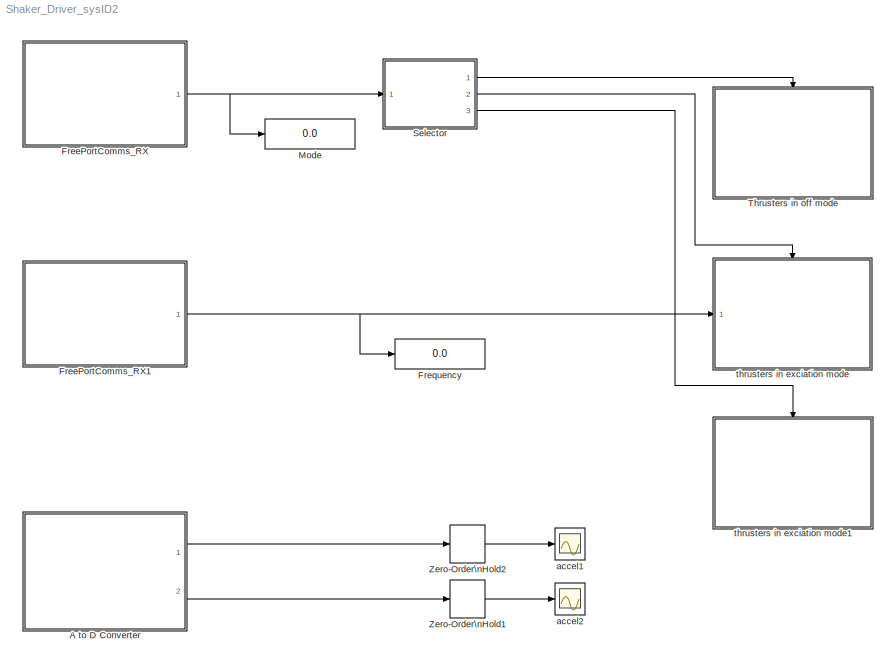
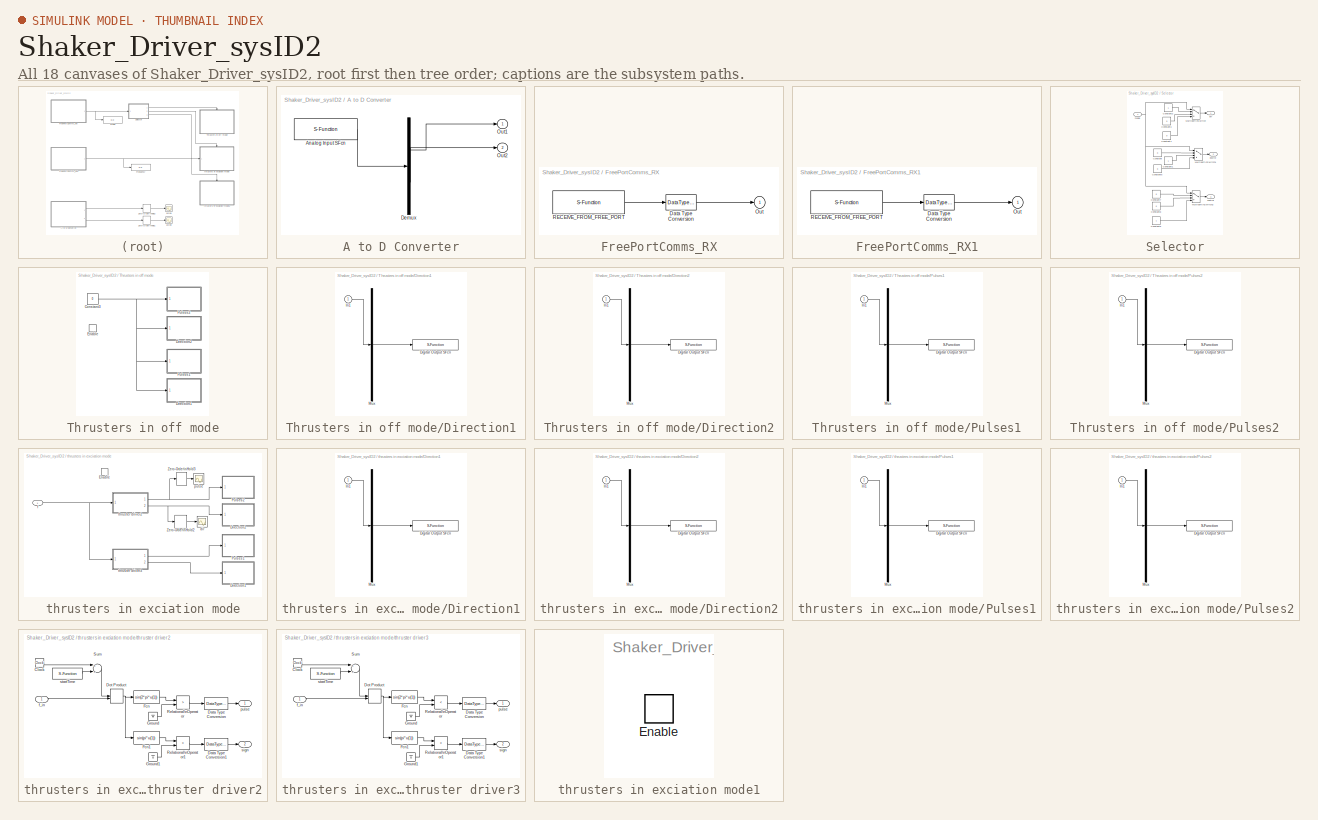
[diagram: thumbnail index - all 18 canvases of the model, root first then tree order]
MODEL Shaker_Driver_sysID2
KIND model
CONFIG PostLoadFcn = global accel1 accel2 pulse;	\nTs = 0.1
BLOCK [SubSystem] A to D Converter
  Ports = [0, 2]
  RequestExecContextInheritance = off
  SID = 84
  ShowPortLabels = none
  Tag = mcTarget_adc
BLOCK [S-Function] A to D Converter/Analog Input SFcn
  EnableBusSupport = off
  FunctionName = adc_sfcn_9S12
  Parameters = bank-1, firstChannel, numChannels, use10bits-1, normalize, sampletime
  Ports = [0, 1]
  SFcnIsStateOwnerBlock = off
  SFunctionDeploymentMode = off
  SID = 84:85
  Tag = mcTarget_adc
BLOCK [Demux] A to D Converter/Demux
  Outputs = 2
  Ports = [1, 2]
  SID = 84:86
BLOCK [Outport] A to D Converter/Out1
  IconDisplay = Port number
  SID = 84:87
BLOCK [Outport] A to D Converter/Out2
  IconDisplay = Port number
  Port = 2
  SID = 84:1
BLOCK [SubSystem] FreePortComms_RX
  Ports = [0, 1]
  RequestExecContextInheritance = off
  SID = 79
  ShowPortLabels = none
  Tag = mcTarget_freePortCommsRX
BLOCK [DataTypeConversion] FreePortComms_RX/Data Type Conversion
  OutDataTypeStr = double
  SID = 79:80
BLOCK [Outport] FreePortComms_RX/Out
  IconDisplay = Port number
  SID = 79:82
BLOCK [S-Function] FreePortComms_RX/RECEIVE_FROM_FREE_PORT
  EnableBusSupport = off
  FunctionName = freePortComms_rxd
  Parameters = sampletime, channel, buf_size, data_type, port, baudrate, format
  Ports = [0, 1]
  SFcnIsStateOwnerBlock = off
  SFunctionDeploymentMode = off
  SID = 79:81
  Tag = mcTarget_freePortCommsRX
BLOCK [SubSystem] FreePortComms_RX1
  Ports = [0, 1]
  RequestExecContextInheritance = off
  SID = 83
  ShowPortLabels = none
  Tag = mcTarget_freePortCommsRX
BLOCK [DataTypeConversion] FreePortComms_RX1/Data Type Conversion
  OutDataTypeStr = double
  SID = 83:80
BLOCK [Outport] FreePortComms_RX1/Out
  IconDisplay = Port number
  SID = 83:82
BLOCK [S-Function] FreePortComms_RX1/RECEIVE_FROM_FREE_PORT
  EnableBusSupport = off
  FunctionName = freePortComms_rxd
  Parameters = sampletime, channel, buf_size, data_type, port, baudrate, format
  Ports = [0, 1]
  SFcnIsStateOwnerBlock = off
  SFunctionDeploymentMode = off
  SID = 83:81
  Tag = mcTarget_freePortCommsRX
BLOCK [Display] Frequency
  Decimation = 1
  Ports = [1]
  SID = 4
BLOCK [Display] Mode
  Decimation = 1
  Ports = [1]
  SID = 5
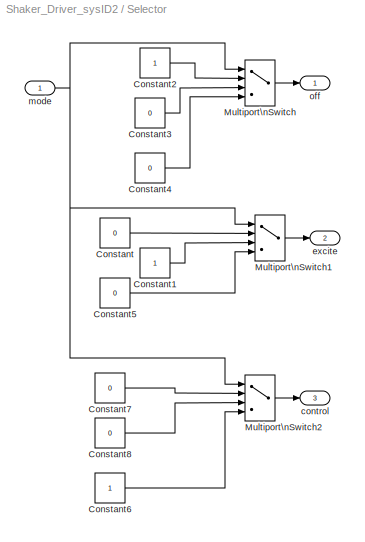
BLOCK [SubSystem] Selector
  Ports = [1, 3]
  RequestExecContextInheritance = off
  SID = 6
BLOCK [Constant] Selector/Constant
  SID = 8
  Value = 0
BLOCK [Constant] Selector/Constant1
  SID = 9
BLOCK [Constant] Selector/Constant2
  SID = 10
BLOCK [Constant] Selector/Constant3
  SID = 11
  Value = 0
BLOCK [Constant] Selector/Constant4
  SID = 12
  Value = 0
BLOCK [Constant] Selector/Constant5
  SID = 13
  Value = 0
BLOCK [Constant] Selector/Constant6
  SID = 14
BLOCK [Constant] Selector/Constant7
  SID = 15
  Value = 0
BLOCK [Constant] Selector/Constant8
  SID = 16
  Value = 0
BLOCK [MultiPortSwitch] Selector/Multiport\nSwitch
  InputSameDT = off
  Ports = [4, 1]
  SID = 17
BLOCK [MultiPortSwitch] Selector/Multiport\nSwitch1
  InputSameDT = off
  Ports = [4, 1]
  SID = 18
BLOCK [MultiPortSwitch] Selector/Multiport\nSwitch2
  InputSameDT = off
  Ports = [4, 1]
  SID = 19
BLOCK [Outport] Selector/control
  IconDisplay = Port number
  Port = 3
  SID = 22
BLOCK [Outport] Selector/excite
  IconDisplay = Port number
  Port = 2
  SID = 21
BLOCK [Inport] Selector/mode
  IconDisplay = Port number
  SID = 7
BLOCK [Outport] Selector/off
  IconDisplay = Port number
  SID = 20
BLOCK [SubSystem] Thrusters in off mode
  Ports = [0, 0, 1]
  RequestExecContextInheritance = off
  SID = 23
BLOCK [Constant] Thrusters in off mode/Constant3
  SID = 25
  Value = 0
BLOCK [SubSystem] Thrusters in off mode/Direction1
  Ports = [1]
  RequestExecContextInheritance = off
  SID = 101
  ShowPortLabels = none
  Tag = mcTarget_digOut
BLOCK [S-Function] Thrusters in off mode/Direction1/Digital Output SFcn
  EnableBusSupport = off
  FunctionName = digOut_sfcn_9S12
  Parameters = sampletime, port, pins, Von, Voff
  Ports = [1]
  SFcnIsStateOwnerBlock = off
  SFunctionDeploymentMode = off
  SID = 103
  Tag = mcTarget_digOut
BLOCK [Inport] Thrusters in off mode/Direction1/In1
  IconDisplay = Port number
  SID = 102
BLOCK [Mux] Thrusters in off mode/Direction1/Mux
  DisplayOption = bar
  Inputs = 1
  Ports = [1, 1]
  SID = 104
BLOCK [SubSystem] Thrusters in off mode/Direction2
  Ports = [1]
  RequestExecContextInheritance = off
  SID = 97
  ShowPortLabels = none
  Tag = mcTarget_digOut
BLOCK [S-Function] Thrusters in off mode/Direction2/Digital Output SFcn
  EnableBusSupport = off
  FunctionName = digOut_sfcn_9S12
  Parameters = sampletime, port, pins, Von, Voff
  Ports = [1]
  SFcnIsStateOwnerBlock = off
  SFunctionDeploymentMode = off
  SID = 99
  Tag = mcTarget_digOut
BLOCK [Inport] Thrusters in off mode/Direction2/In1
  IconDisplay = Port number
  SID = 98
BLOCK [Mux] Thrusters in off mode/Direction2/Mux
  DisplayOption = bar
  Inputs = 1
  Ports = [1, 1]
  SID = 100
BLOCK [EnablePort] Thrusters in off mode/Enable
  Ports = []
  SID = 24
BLOCK [SubSystem] Thrusters in off mode/Pulses1
  Ports = [1]
  RequestExecContextInheritance = off
  SID = 93
  ShowPortLabels = none
  Tag = mcTarget_digOut
BLOCK [S-Function] Thrusters in off mode/Pulses1/Digital Output SFcn
  EnableBusSupport = off
  FunctionName = digOut_sfcn_9S12
  Parameters = sampletime, port, pins, Von, Voff
  Ports = [1]
  SFcnIsStateOwnerBlock = off
  SFunctionDeploymentMode = off
  SID = 95
  Tag = mcTarget_digOut
BLOCK [Inport] Thrusters in off mode/Pulses1/In1
  IconDisplay = Port number
  SID = 94
BLOCK [Mux] Thrusters in off mode/Pulses1/Mux
  DisplayOption = bar
  Inputs = 1
  Ports = [1, 1]
  SID = 96
BLOCK [SubSystem] Thrusters in off mode/Pulses2
  Ports = [1]
  RequestExecContextInheritance = off
  SID = 88
  ShowPortLabels = none
  Tag = mcTarget_digOut
BLOCK [S-Function] Thrusters in off mode/Pulses2/Digital Output SFcn
  EnableBusSupport = off
  FunctionName = digOut_sfcn_9S12
  Parameters = sampletime, port, pins, Von, Voff
  Ports = [1]
  SFcnIsStateOwnerBlock = off
  SFunctionDeploymentMode = off
  SID = 91
  Tag = mcTarget_digOut
BLOCK [Inport] Thrusters in off mode/Pulses2/In1
  IconDisplay = Port number
  SID = 89
BLOCK [Mux] Thrusters in off mode/Pulses2/Mux
  DisplayOption = bar
  Inputs = 1
  Ports = [1, 1]
  SID = 92
BLOCK [ZeroOrderHold] Zero-Order\nHold1
  SID = 30
  SampleTime = Ts
BLOCK [ZeroOrderHold] Zero-Order\nHold2
  SID = 31
  SampleTime = Ts
BLOCK [Scope] accel1
  Floating = off
  NumInputPorts = 1
  Ports = [1]
  SID = 32
  ScopeSpecificationString = C++SS(StrPVP('Location','[49, 484, 390, 684]'),StrPVP('Open','off'),MxPVP('AxesTitles',54,'struct(''axes1'',''%<SignalLabel>'')'),StrPVP('TimeRange','4'),StrPVP('YMin','1.7'),StrPVP('YMax','3.4'),StrPVP('SaveToWorkspace','on'),StrPVP('SaveName','accel1'),StrPVP('DataFormat','StructureWithTime'),StrPVP('LimitDataPoints','on'),StrPVP('Decimation','1'),StrPVP('BlockParamSampleInput','off'))
BLOCK [Scope] accel2
  Floating = off
  NumInputPorts = 1
  Ports = [1]
  SID = 33
  ScopeSpecificationString = C++SS(StrPVP('Location','[419, 487, 747, 695]'),StrPVP('Open','off'),MxPVP('AxesTitles',54,'struct(''axes1'',''%<SignalLabel>'')'),StrPVP('TimeRange','4'),StrPVP('YMin','-1'),StrPVP('YMax','6'),StrPVP('SaveToWorkspace','on'),StrPVP('SaveName','accel2'),StrPVP('DataFormat','StructureWithTime'),StrPVP('LimitDataPoints','on'),StrPVP('Decimation','1'),StrPVP('BlockParamSampleInput','off'))
BLOCK [SubSystem] thrusters in exciation mode
  Ports = [1, 0, 1]
  RequestExecContextInheritance = off
  SID = 34
BLOCK [SubSystem] thrusters in exciation mode/Direction1
  Ports = [1]
  RequestExecContextInheritance = off
  SID = 105
  ShowPortLabels = none
  Tag = mcTarget_digOut
BLOCK [S-Function] thrusters in exciation mode/Direction1/Digital Output SFcn
  EnableBusSupport = off
  FunctionName = digOut_sfcn_9S12
  Parameters = sampletime, port, pins, Von, Voff
  Ports = [1]
  SFcnIsStateOwnerBlock = off
  SFunctionDeploymentMode = off
  SID = 107
  Tag = mcTarget_digOut
BLOCK [Inport] thrusters in exciation mode/Direction1/In1
  IconDisplay = Port number
  SID = 106
BLOCK [Mux] thrusters in exciation mode/Direction1/Mux
  DisplayOption = bar
  Inputs = 1
  Ports = [1, 1]
  SID = 108
BLOCK [SubSystem] thrusters in exciation mode/Direction2
  Ports = [1]
  RequestExecContextInheritance = off
  SID = 109
  ShowPortLabels = none
  Tag = mcTarget_digOut
BLOCK [S-Function] thrusters in exciation mode/Direction2/Digital Output SFcn
  EnableBusSupport = off
  FunctionName = digOut_sfcn_9S12
  Parameters = sampletime, port, pins, Von, Voff
  Ports = [1]
  SFcnIsStateOwnerBlock = off
  SFunctionDeploymentMode = off
  SID = 111
  Tag = mcTarget_digOut
BLOCK [Inport] thrusters in exciation mode/Direction2/In1
  IconDisplay = Port number
  SID = 110
BLOCK [Mux] thrusters in exciation mode/Direction2/Mux
  DisplayOption = bar
  Inputs = 1
  Ports = [1, 1]
  SID = 112
BLOCK [EnablePort] thrusters in exciation mode/Enable
  Ports = []
  SID = 36
BLOCK [SubSystem] thrusters in exciation mode/Pulses1
  Ports = [1]
  RequestExecContextInheritance = off
  SID = 113
  ShowPortLabels = none
  Tag = mcTarget_digOut
BLOCK [S-Function] thrusters in exciation mode/Pulses1/Digital Output SFcn
  EnableBusSupport = off
  FunctionName = digOut_sfcn_9S12
  Parameters = sampletime, port, pins, Von, Voff
  Ports = [1]
  SFcnIsStateOwnerBlock = off
  SFunctionDeploymentMode = off
  SID = 115
  Tag = mcTarget_digOut
BLOCK [Inport] thrusters in exciation mode/Pulses1/In1
  IconDisplay = Port number
  SID = 114
BLOCK [Mux] thrusters in exciation mode/Pulses1/Mux
  DisplayOption = bar
  Inputs = 1
  Ports = [1, 1]
  SID = 116
BLOCK [SubSystem] thrusters in exciation mode/Pulses2
  Ports = [1]
  RequestExecContextInheritance = off
  SID = 117
  ShowPortLabels = none
  Tag = mcTarget_digOut
BLOCK [S-Function] thrusters in exciation mode/Pulses2/Digital Output SFcn
  EnableBusSupport = off
  FunctionName = digOut_sfcn_9S12
  Parameters = sampletime, port, pins, Von, Voff
  Ports = [1]
  SFcnIsStateOwnerBlock = off
  SFunctionDeploymentMode = off
  SID = 119
  Tag = mcTarget_digOut
BLOCK [Inport] thrusters in exciation mode/Pulses2/In1
  IconDisplay = Port number
  SID = 118
BLOCK [Mux] thrusters in exciation mode/Pulses2/Mux
  DisplayOption = bar
  Inputs = 1
  Ports = [1, 1]
  SID = 120
BLOCK [ZeroOrderHold] thrusters in exciation mode/Zero-Order\nHold2
  SID = 41
  SampleTime = Ts
BLOCK [ZeroOrderHold] thrusters in exciation mode/Zero-Order\nHold3
  SID = 42
  SampleTime = Ts
BLOCK [Scope] thrusters in exciation mode/dir
  Floating = off
  NumInputPorts = 1
  Ports = [1]
  SID = 43
  ScopeSpecificationString = C++SS(StrPVP('Location','[197, 330, 521, 569]'),StrPVP('Open','off'),MxPVP('AxesTitles',54,'struct(''axes1'',''%<SignalLabel>'')'),StrPVP('TimeRange','4'),StrPVP('YMin','-1'),StrPVP('YMax','2'),StrPVP('SaveToWorkspace','on'),StrPVP('SaveName','direction'),StrPVP('DataFormat','StructureWithTime'),StrPVP('LimitDataPoints','on'),StrPVP('Decimation','1'),StrPVP('BlockParamSampleInput','off'))
BLOCK [Inport] thrusters in exciation mode/f
  IconDisplay = Port number
  SID = 35
BLOCK [Scope] thrusters in exciation mode/pulse
  Floating = off
  NumInputPorts = 1
  Ports = [1]
  SID = 44
  ScopeSpecificationString = C++SS(StrPVP('Location','[188, 365, 512, 604]'),StrPVP('Open','off'),MxPVP('AxesTitles',54,'struct(''axes1'',''%<SignalLabel>'')'),StrPVP('TimeRange','4'),StrPVP('YMin','-1'),StrPVP('YMax','2'),StrPVP('SaveToWorkspace','on'),StrPVP('SaveName','pulse'),StrPVP('DataFormat','StructureWithTime'),StrPVP('LimitDataPoints','on'),StrPVP('Decimation','1'),StrPVP('BlockParamSampleInput','off'))
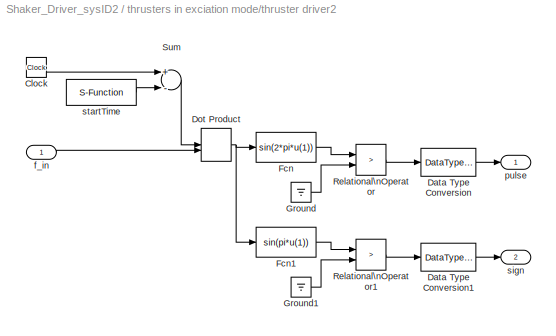
BLOCK [SubSystem] thrusters in exciation mode/thruster driver2
  Ports = [1, 2]
  RequestExecContextInheritance = off
  SID = 45
BLOCK [Clock] thrusters in exciation mode/thruster driver2/Clock
  SID = 47
BLOCK [DataTypeConversion] thrusters in exciation mode/thruster driver2/Data Type Conversion
  OutDataTypeStr = double
  SID = 48
BLOCK [DataTypeConversion] thrusters in exciation mode/thruster driver2/Data Type Conversion1
  OutDataTypeStr = double
  SID = 49
BLOCK [DotProduct] thrusters in exciation mode/thruster driver2/Dot Product
  OutDataTypeStr = Inherit: Inherit via internal rule
  SID = 50
BLOCK [Fcn] thrusters in exciation mode/thruster driver2/Fcn
  Expr = sin(2*pi*u(1))
  SID = 51
BLOCK [Fcn] thrusters in exciation mode/thruster driver2/Fcn1
  Expr = sin(pi*u(1))
  SID = 52
BLOCK [Ground] thrusters in exciation mode/thruster driver2/Ground
  SID = 53
BLOCK [Ground] thrusters in exciation mode/thruster driver2/Ground1
  SID = 54
BLOCK [RelationalOperator] thrusters in exciation mode/thruster driver2/Relational\nOperator
  Operator = >
  Ports = [2, 1]
  SID = 55
BLOCK [RelationalOperator] thrusters in exciation mode/thruster driver2/Relational\nOperator1
  Operator = >
  Ports = [2, 1]
  SID = 56
BLOCK [Sum] thrusters in exciation mode/thruster driver2/Sum
  Inputs = +-
  Ports = [2, 1]
  SID = 57
BLOCK [Inport] thrusters in exciation mode/thruster driver2/f_in
  IconDisplay = Port number
  SID = 46
BLOCK [Outport] thrusters in exciation mode/thruster driver2/pulse
  IconDisplay = Port number
  SID = 59
BLOCK [Outport] thrusters in exciation mode/thruster driver2/sign
  IconDisplay = Port number
  Port = 2
  SID = 60
BLOCK [S-Function] thrusters in exciation mode/thruster driver2/startTime
  EnableBusSupport = off
  FunctionName = sfun_tstart
  Ports = [0, 1]
  SFcnIsStateOwnerBlock = off
  SFunctionDeploymentMode = off
  SID = 58
BLOCK [SubSystem] thrusters in exciation mode/thruster driver3
  Ports = [1, 2]
  RequestExecContextInheritance = off
  SID = 61
BLOCK [Clock] thrusters in exciation mode/thruster driver3/Clock
  SID = 63
BLOCK [DataTypeConversion] thrusters in exciation mode/thruster driver3/Data Type Conversion
  OutDataTypeStr = double
  SID = 64
BLOCK [DataTypeConversion] thrusters in exciation mode/thruster driver3/Data Type Conversion1
  OutDataTypeStr = double
  SID = 65
BLOCK [DotProduct] thrusters in exciation mode/thruster driver3/Dot Product
  OutDataTypeStr = Inherit: Inherit via internal rule
  SID = 66
BLOCK [Fcn] thrusters in exciation mode/thruster driver3/Fcn
  Expr = sin(2*pi*u(1))
  SID = 67
BLOCK [Fcn] thrusters in exciation mode/thruster driver3/Fcn1
  Expr = sin(pi*u(1))
  SID = 68
BLOCK [Ground] thrusters in exciation mode/thruster driver3/Ground
  SID = 69
BLOCK [Ground] thrusters in exciation mode/thruster driver3/Ground1
  SID = 70
BLOCK [RelationalOperator] thrusters in exciation mode/thruster driver3/Relational\nOperator
  Operator = <
  Ports = [2, 1]
  SID = 71
BLOCK [RelationalOperator] thrusters in exciation mode/thruster driver3/Relational\nOperator1
  Operator = <
  Ports = [2, 1]
  SID = 72
BLOCK [Sum] thrusters in exciation mode/thruster driver3/Sum
  Inputs = +-
  Ports = [2, 1]
  SID = 73
BLOCK [Inport] thrusters in exciation mode/thruster driver3/f_in
  IconDisplay = Port number
  SID = 62
BLOCK [Outport] thrusters in exciation mode/thruster driver3/pulse
  IconDisplay = Port number
  SID = 75
BLOCK [Outport] thrusters in exciation mode/thruster driver3/sign
  IconDisplay = Port number
  Port = 2
  SID = 76
BLOCK [S-Function] thrusters in exciation mode/thruster driver3/startTime
  EnableBusSupport = off
  FunctionName = sfun_tstart
  Ports = [0, 1]
  SFcnIsStateOwnerBlock = off
  SFunctionDeploymentMode = off
  SID = 74
BLOCK [SubSystem] thrusters in exciation mode1
  Ports = [0, 0, 1]
  RequestExecContextInheritance = off
  SID = 77
BLOCK [EnablePort] thrusters in exciation mode1/Enable
  Ports = []
  SID = 78
LINE A to D Converter/Analog Input SFcn:1 -> A to D Converter/Demux:1
LINE A to D Converter/Demux:1 -> A to D Converter/Out1:1
LINE A to D Converter/Demux:2 -> A to D Converter/Out2:1
LINE A to D Converter:1 -> Zero-Order\nHold2:1
LINE A to D Converter:2 -> Zero-Order\nHold1:1
LINE FreePortComms_RX/Data Type Conversion:1 -> FreePortComms_RX/Out:1
LINE FreePortComms_RX/RECEIVE_FROM_FREE_PORT:1 -> FreePortComms_RX/Data Type Conversion:1
LINE FreePortComms_RX1/Data Type Conversion:1 -> FreePortComms_RX1/Out:1
LINE FreePortComms_RX1/RECEIVE_FROM_FREE_PORT:1 -> FreePortComms_RX1/Data Type Conversion:1
NET FreePortComms_RX1:1 -> Frequency:1, thrusters in exciation mode:1
NET FreePortComms_RX:1 -> Mode:1, Selector:1
LINE Selector/Constant1:1 -> Selector/Multiport\nSwitch1:3
LINE Selector/Constant2:1 -> Selector/Multiport\nSwitch:2
LINE Selector/Constant3:1 -> Selector/Multiport\nSwitch:3
LINE Selector/Constant4:1 -> Selector/Multiport\nSwitch:4
LINE Selector/Constant5:1 -> Selector/Multiport\nSwitch1:4
LINE Selector/Constant6:1 -> Selector/Multiport\nSwitch2:4
LINE Selector/Constant7:1 -> Selector/Multiport\nSwitch2:2
LINE Selector/Constant8:1 -> Selector/Multiport\nSwitch2:3
LINE Selector/Constant:1 -> Selector/Multiport\nSwitch1:2
LINE Selector/Multiport\nSwitch1:1 -> Selector/excite:1
LINE Selector/Multiport\nSwitch2:1 -> Selector/control:1
LINE Selector/Multiport\nSwitch:1 -> Selector/off:1
NET Selector/mode:1 -> Selector/Multiport\nSwitch1:1, Selector/Multiport\nSwitch2:1, Selector/Multiport\nSwitch:1
LINE Selector:1 -> Thrusters in off mode:enable
LINE Selector:2 -> thrusters in exciation mode:enable
LINE Selector:3 -> thrusters in exciation mode1:enable
NET Thrusters in off mode/Constant3:1 -> Thrusters in off mode/Direction1:1, Thrusters in off mode/Direction2:1, Thrusters in off mode/Pulses1:1, Thrusters in off mode/Pulses2:1
LINE Thrusters in off mode/Direction1/In1:1 -> Thrusters in off mode/Direction1/Mux:1
LINE Thrusters in off mode/Direction1/Mux:1 -> Thrusters in off mode/Direction1/Digital Output SFcn:1
LINE Thrusters in off mode/Direction2/In1:1 -> Thrusters in off mode/Direction2/Mux:1
LINE Thrusters in off mode/Direction2/Mux:1 -> Thrusters in off mode/Direction2/Digital Output SFcn:1
LINE Thrusters in off mode/Pulses1/In1:1 -> Thrusters in off mode/Pulses1/Mux:1
LINE Thrusters in off mode/Pulses1/Mux:1 -> Thrusters in off mode/Pulses1/Digital Output SFcn:1
LINE Thrusters in off mode/Pulses2/In1:1 -> Thrusters in off mode/Pulses2/Mux:1
LINE Thrusters in off mode/Pulses2/Mux:1 -> Thrusters in off mode/Pulses2/Digital Output SFcn:1
LINE Zero-Order\nHold1:1 -> accel2:1
LINE Zero-Order\nHold2:1 -> accel1:1
LINE thrusters in exciation mode/Direction1/In1:1 -> thrusters in exciation mode/Direction1/Mux:1
LINE thrusters in exciation mode/Direction1/Mux:1 -> thrusters in exciation mode/Direction1/Digital Output SFcn:1
LINE thrusters in exciation mode/Direction2/In1:1 -> thrusters in exciation mode/Direction2/Mux:1
LINE thrusters in exciation mode/Direction2/Mux:1 -> thrusters in exciation mode/Direction2/Digital Output SFcn:1
LINE thrusters in exciation mode/Pulses1/In1:1 -> thrusters in exciation mode/Pulses1/Mux:1
LINE thrusters in exciation mode/Pulses1/Mux:1 -> thrusters in exciation mode/Pulses1/Digital Output SFcn:1
LINE thrusters in exciation mode/Pulses2/In1:1 -> thrusters in exciation mode/Pulses2/Mux:1
LINE thrusters in exciation mode/Pulses2/Mux:1 -> thrusters in exciation mode/Pulses2/Digital Output SFcn:1
LINE thrusters in exciation mode/Zero-Order\nHold2:1 -> thrusters in exciation mode/dir:1
LINE thrusters in exciation mode/Zero-Order\nHold3:1 -> thrusters in exciation mode/pulse:1
NET thrusters in exciation mode/f:1 -> thrusters in exciation mode/thruster driver2:1, thrusters in exciation mode/thruster driver3:1
LINE thrusters in exciation mode/thruster driver2/Clock:1 -> thrusters in exciation mode/thruster driver2/Sum:1
LINE thrusters in exciation mode/thruster driver2/Data Type Conversion1:1 -> thrusters in exciation mode/thruster driver2/sign:1
LINE thrusters in exciation mode/thruster driver2/Data Type Conversion:1 -> thrusters in exciation mode/thruster driver2/pulse:1
NET thrusters in exciation mode/thruster driver2/Dot Product:1 -> thrusters in exciation mode/thruster driver2/Fcn1:1, thrusters in exciation mode/thruster driver2/Fcn:1
LINE thrusters in exciation mode/thruster driver2/Fcn1:1 -> thrusters in exciation mode/thruster driver2/Relational\nOperator1:1
LINE thrusters in exciation mode/thruster driver2/Fcn:1 -> thrusters in exciation mode/thruster driver2/Relational\nOperator:1
LINE thrusters in exciation mode/thruster driver2/Ground1:1 -> thrusters in exciation mode/thruster driver2/Relational\nOperator1:2
LINE thrusters in exciation mode/thruster driver2/Ground:1 -> thrusters in exciation mode/thruster driver2/Relational\nOperator:2
LINE thrusters in exciation mode/thruster driver2/Relational\nOperator1:1 -> thrusters in exciation mode/thruster driver2/Data Type Conversion1:1
LINE thrusters in exciation mode/thruster driver2/Relational\nOperator:1 -> thrusters in exciation mode/thruster driver2/Data Type Conversion:1
LINE thrusters in exciation mode/thruster driver2/Sum:1 -> thrusters in exciation mode/thruster driver2/Dot Product:1
LINE thrusters in exciation mode/thruster driver2/f_in:1 -> thrusters in exciation mode/thruster driver2/Dot Product:2
LINE thrusters in exciation mode/thruster driver2/startTime:1 -> thrusters in exciation mode/thruster driver2/Sum:2
NET thrusters in exciation mode/thruster driver2:1 -> thrusters in exciation mode/Pulses2:1, thrusters in exciation mode/Zero-Order\nHold3:1
NET thrusters in exciation mode/thruster driver2:2 -> thrusters in exciation mode/Direction2:1, thrusters in exciation mode/Zero-Order\nHold2:1
LINE thrusters in exciation mode/thruster driver3/Clock:1 -> thrusters in exciation mode/thruster driver3/Sum:1
LINE thrusters in exciation mode/thruster driver3/Data Type Conversion1:1 -> thrusters in exciation mode/thruster driver3/sign:1
LINE thrusters in exciation mode/thruster driver3/Data Type Conversion:1 -> thrusters in exciation mode/thruster driver3/pulse:1
NET thrusters in exciation mode/thruster driver3/Dot Product:1 -> thrusters in exciation mode/thruster driver3/Fcn1:1, thrusters in exciation mode/thruster driver3/Fcn:1
LINE thrusters in exciation mode/thruster driver3/Fcn1:1 -> thrusters in exciation mode/thruster driver3/Relational\nOperator1:1
LINE thrusters in exciation mode/thruster driver3/Fcn:1 -> thrusters in exciation mode/thruster driver3/Relational\nOperator:1
LINE thrusters in exciation mode/thruster driver3/Ground1:1 -> thrusters in exciation mode/thruster driver3/Relational\nOperator1:2
LINE thrusters in exciation mode/thruster driver3/Ground:1 -> thrusters in exciation mode/thruster driver3/Relational\nOperator:2
LINE thrusters in exciation mode/thruster driver3/Relational\nOperator1:1 -> thrusters in exciation mode/thruster driver3/Data Type Conversion1:1
LINE thrusters in exciation mode/thruster driver3/Relational\nOperator:1 -> thrusters in exciation mode/thruster driver3/Data Type Conversion:1
LINE thrusters in exciation mode/thruster driver3/Sum:1 -> thrusters in exciation mode/thruster driver3/Dot Product:1
LINE thrusters in exciation mode/thruster driver3/f_in:1 -> thrusters in exciation mode/thruster driver3/Dot Product:2
LINE thrusters in exciation mode/thruster driver3/startTime:1 -> thrusters in exciation mode/thruster driver3/Sum:2
LINE thrusters in exciation mode/thruster driver3:1 -> thrusters in exciation mode/Pulses1:1
LINE thrusters in exciation mode/thruster driver3:2 -> thrusters in exciation mode/Direction1:1
note: NET lines group one-source signal fan-out (src -> all destinations, sorted); 1:1 wires keep LINE
